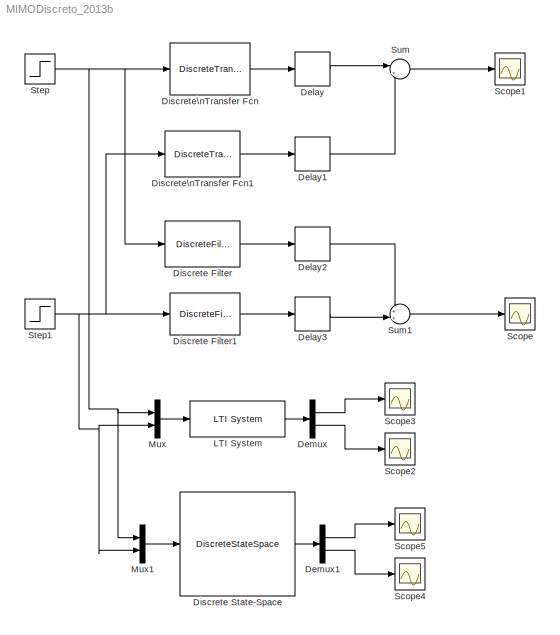
MODEL MIMODiscreto_2013b
KIND model
BLOCK [Delay] Delay
  InputPortMap = u0
  Ports = [1, 1]
  SID = 5
BLOCK [Delay] Delay1
  DelayLength = 6
  InputPortMap = u0
  Ports = [1, 1]
  SID = 6
  SampleTime = 0.5
BLOCK [Delay] Delay2
  DelayLength = 14
  InputPortMap = u0
  Ports = [1, 1]
  SID = 7
BLOCK [Delay] Delay3
  DelayLength = 6
  InputPortMap = u0
  Ports = [1, 1]
  SID = 8
BLOCK [Demux] Demux
  DisplayOption = bar
  Outputs = 2
  Ports = [1, 2]
  SID = 15
BLOCK [Demux] Demux1
  DisplayOption = bar
  Outputs = 2
  Ports = [1, 2]
  SID = 21
BLOCK [DiscreteFilter] Discrete Filter
  Denominator = [1 -0.9552]
  InputPortMap = u0
  Numerator = [0 0.2959]
  Ports = [1, 1]
  SID = 3
  SampleTime = 0.5
BLOCK [DiscreteFilter] Discrete Filter1
  Denominator = [1 -0.9659]
  InputPortMap = u0
  Numerator = [0 -0.6621]
  Ports = [1, 1]
  SID = 4
  SampleTime = 0.5
BLOCK [DiscreteStateSpace] Discrete State-Space
  A = Ad
  B = Bd
  C = Cd
  D = Dd
  SID = 20
  SampleTime = 0.5
BLOCK [DiscreteTransferFcn] Discrete\nTransfer Fcn
  Denominator = [1 -0.9705]
  InputPortMap = u0
  Numerator = [0.3776]
  Ports = [1, 1]
  SID = 1
  SampleTime = 0.5
BLOCK [DiscreteTransferFcn] Discrete\nTransfer Fcn1
  Denominator = [1 -0.9765]
  InputPortMap = u0
  Numerator = [-0.447]
  Ports = [1, 1]
  SID = 2
BLOCK [Reference] LTI System  REF=cstblocks/LTI System
  IC = []
  Ports = [1, 1]
  SID = 16
  SourceBlock = cstblocks/LTI System
  SourceType = LTI Block
  sys = Pz
BLOCK [Mux] Mux
  DisplayOption = bar
  Inputs = 2
  Ports = [2, 1]
  SID = 17
BLOCK [Mux] Mux1
  DisplayOption = bar
  Inputs = 2
  Ports = [2, 1]
  SID = 24
BLOCK [Scope] Scope
  DataFormat = StructureWithTime
  Decimation = 1
  Floating = off
  Grid = on
  LimitDataPoints = off
  MaxDataPoints = 5000
  NumInputPorts = 1
  Ports = [1]
  SID = 13
  SampleInput = off
  SampleTime = -1
  SaveName = ScopeData
  SaveToWorkspace = off
  ShowLegends = off
  TickLabels = OneTimeTick
  TimeRange = auto
  YMax = 8.85868
  YMin = -15.21931
  ZoomMode = on
BLOCK [Scope] Scope1
  DataFormat = StructureWithTime
  Decimation = 1
  Floating = off
  Grid = on
  LimitDataPoints = off
  MaxDataPoints = 5000
  NumInputPorts = 1
  Ports = [1]
  SID = 14
  SampleInput = off
  SampleTime = -1
  SaveName = ScopeData1
  SaveToWorkspace = off
  ShowLegends = off
  TickLabels = OneTimeTick
  TimeRange = auto
  YMax = 14.31478
  YMin = -8.50289
  ZoomMode = on
BLOCK [Scope] Scope2
  DataFormat = StructureWithTime
  Decimation = 1
  Floating = off
  Grid = on
  LimitDataPoints = off
  MaxDataPoints = 5000
  NumInputPorts = 1
  Ports = [1]
  SID = 18
  SampleInput = off
  SampleTime = -1
  SaveName = ScopeData2
  SaveToWorkspace = off
  ShowLegends = off
  TickLabels = OneTimeTick
  TimeRange = auto
  YMax = 8.85237
  YMin = -15.20582
  ZoomMode = on
BLOCK [Scope] Scope3
  DataFormat = StructureWithTime
  Decimation = 1
  Floating = off
  Grid = on
  LimitDataPoints = off
  MaxDataPoints = 5000
  NumInputPorts = 1
  Ports = [1]
  SID = 19
  SampleInput = off
  SampleTime = -1
  SaveName = ScopeData3
  SaveToWorkspace = off
  ShowLegends = off
  TickLabels = OneTimeTick
  TimeRange = auto
  YMax = 14.29931
  YMin = -8.36643
  ZoomMode = on
BLOCK [Scope] Scope4
  DataFormat = StructureWithTime
  Decimation = 1
  Floating = off
  Grid = on
  LimitDataPoints = off
  MaxDataPoints = 5000
  NumInputPorts = 1
  Ports = [1]
  SID = 22
  SampleInput = off
  SampleTime = -1
  SaveName = ScopeData4
  SaveToWorkspace = off
  ShowLegends = off
  TickLabels = OneTimeTick
  TimeRange = auto
  YMax = 8.9054
  YMin = -15.21171
  ZoomMode = on
BLOCK [Scope] Scope5
  DataFormat = StructureWithTime
  Decimation = 1
  Floating = off
  Grid = on
  LimitDataPoints = off
  MaxDataPoints = 5000
  NumInputPorts = 1
  Ports = [1]
  SID = 23
  SampleInput = off
  SampleTime = -1
  SaveName = ScopeData5
  SaveToWorkspace = off
  ShowLegends = off
  TickLabels = OneTimeTick
  TimeRange = auto
  YMax = 14.1895
  YMin = -8.35425
  ZoomMode = on
BLOCK [Step] Step
  SID = 11
  SampleTime = 0.5
  Time = 5
BLOCK [Step] Step1
  SID = 12
  SampleTime = 0.5
  Time = 50
BLOCK [Sum] Sum
  IconShape = round
  InputSameDT = off
  Inputs = |++
  OutDataTypeStr = Inherit: Inherit via internal rule
  Ports = [2, 1]
  SID = 9
  SaturateOnIntegerOverflow = off
BLOCK [Sum] Sum1
  IconShape = round
  InputSameDT = off
  Inputs = ++|
  OutDataTypeStr = Inherit: Inherit via internal rule
  Ports = [2, 1]
  SID = 10
  SaturateOnIntegerOverflow = off
LINE Delay1:1 -> Sum:2
LINE Delay2:1 -> Sum1:1
LINE Delay3:1 -> Sum1:2
LINE Delay:1 -> Sum:1
LINE Demux1:1 -> Scope5:1
LINE Demux1:2 -> Scope4:1
LINE Demux:1 -> Scope3:1
LINE Demux:2 -> Scope2:1
LINE Discrete Filter1:1 -> Delay3:1
LINE Discrete Filter:1 -> Delay2:1
LINE Discrete State-Space:1 -> Demux1:1
LINE Discrete\nTransfer Fcn1:1 -> Delay1:1
LINE Discrete\nTransfer Fcn:1 -> Delay:1
LINE LTI System:1 -> Demux:1
LINE Mux1:1 -> Discrete State-Space:1
LINE Mux:1 -> LTI System:1
NET Step1:1 -> Discrete Filter1:1, Discrete\nTransfer Fcn1:1, Mux1:2, Mux:2
NET Step:1 -> Discrete Filter:1, Discrete\nTransfer Fcn:1, Mux1:1, Mux:1
LINE Sum1:1 -> Scope:1
LINE Sum:1 -> Scope1:1
note: NET lines group one-source signal fan-out (src -> all destinations, sorted); 1:1 wires keep LINE
